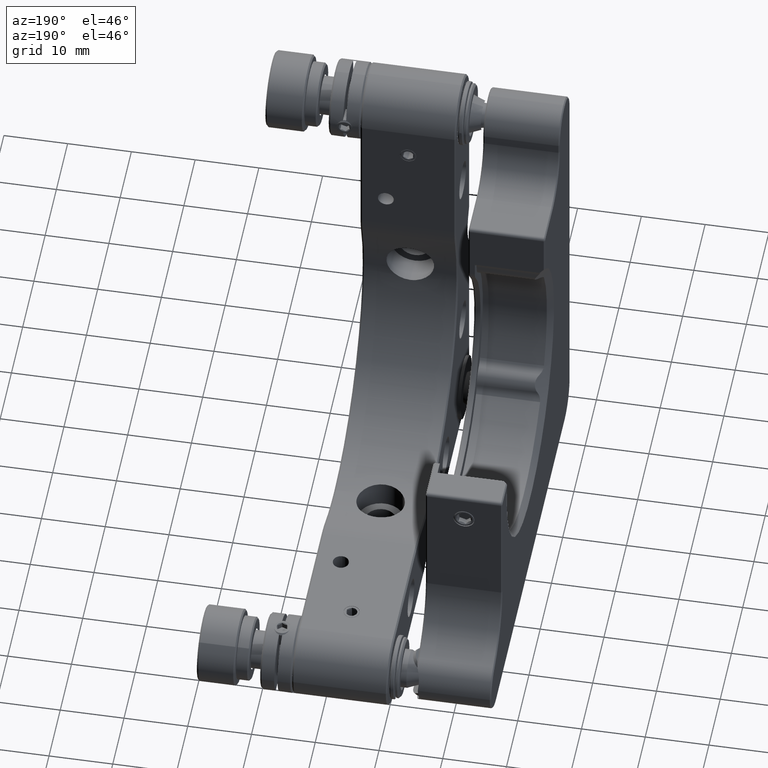
[diagram: clean part render]
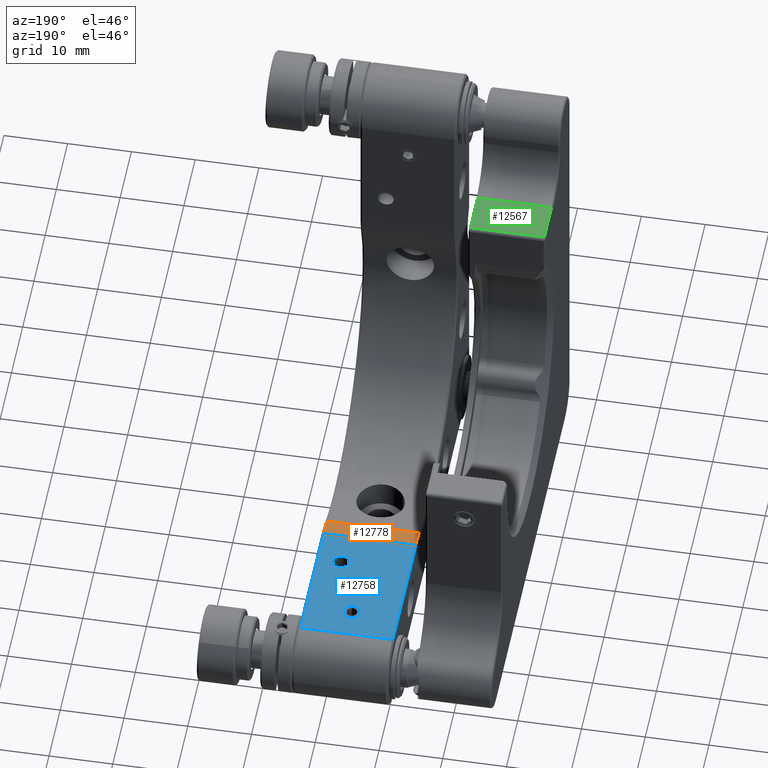
[diagram: same view with three faces highlighted in distinct colors, each labeled with its STEP entity id]
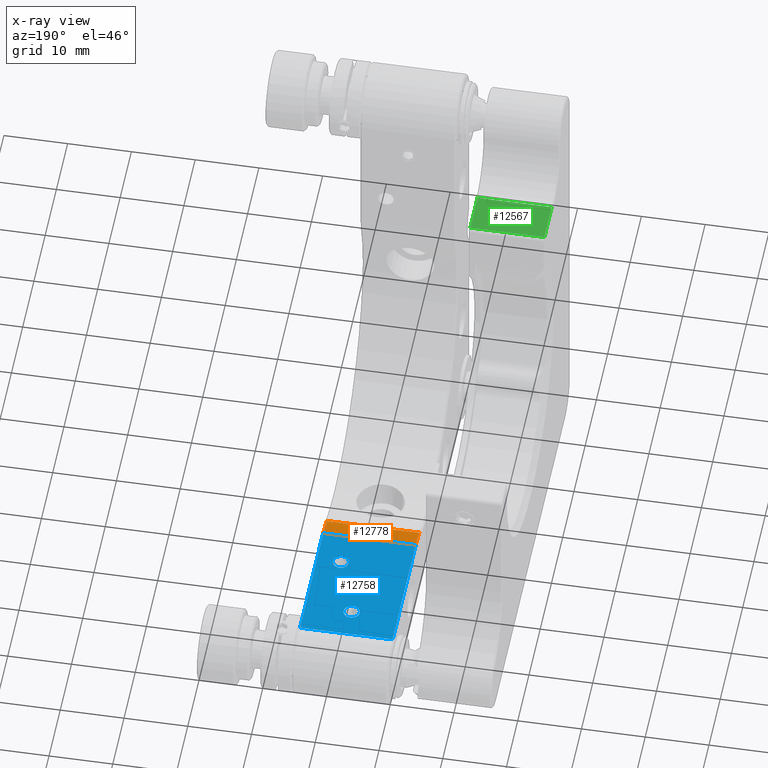
[diagram: x-ray of the same camera — body ghosted, the three highlighted faces saturated]
A machine part, auxiliary view with three faces highlighted in distinct colors.
The next image is the same camera in x-ray (body ghosted, the three faces saturated) — at least one of them is partly hidden behind the body in this view.
Their STEP definitions:

[orange] entity #12778 — the highlighted cylindrical surface (partial cylindrical patch) has radius 10 mm, axis along (1, -0, -0).
#79 = DIRECTION ( 'NONE',  ( 0.000000000000000000, 3.469446951953614189E-15, -1.000000000000000000 ) ) ;
#856 = CARTESIAN_POINT ( 'NONE',  ( -0.2256193229141847945, 5.407908999789167837, 26.95714285714285197 ) ) ;
#1222 = VERTEX_POINT ( 'NONE', #10768 ) ;
#1318 = DIRECTION ( 'NONE',  ( -1.000000000000000000, 0.000000000000000000, 0.000000000000000000 ) ) ;
#1416 = EDGE_CURVE ( 'NONE', #2560, #3560, #2873, .T. ) ;
#1592 = VERTEX_POINT ( 'NONE', #14742 ) ;
#2028 = CARTESIAN_POINT ( 'NONE',  ( -0.2256193229141847945, 8.657901150486123854, 17.49999999999999645 ) ) ;
#2560 = VERTEX_POINT ( 'NONE', #5594 ) ;
#2704 = ORIENTED_EDGE ( 'NONE', *, *, #15208, .F. ) ;
#2873 = CIRCLE ( 'NONE', #5119, 10.00000000000000000 ) ;
#3194 = CARTESIAN_POINT ( 'NONE',  ( -0.4756193229141988943, 8.657901150486123854, 27.49999999999999645 ) ) ;
#3560 = VERTEX_POINT ( 'NONE', #856 ) ;
#3733 = EDGE_CURVE ( 'NONE', #1222, #1592, #11863, .T. ) ;
#3903 = CYLINDRICAL_SURFACE ( 'NONE', #5881, 10.00000000000000000 ) ;
#3944 = ORIENTED_EDGE ( 'NONE', *, *, #1416, .T. ) ;
#3989 = EDGE_LOOP ( 'NONE', ( #5714, #3944, #2704, #10774 ) ) ;
#4279 = CARTESIAN_POINT ( 'NONE',  ( -0.4756193229141988943, 8.657901150486123854, 17.49999999999999645 ) ) ;
#4296 = DIRECTION ( 'NONE',  ( 1.000000000000000000, -0.000000000000000000, 0.000000000000000000 ) ) ;
#4878 = VECTOR ( 'NONE', #9731, 1000.000000000000000 ) ;
#4965 = CARTESIAN_POINT ( 'NONE',  ( -0.4756193229141988943, 5.407908999789167837, 26.95714285714285197 ) ) ;
#5119 = AXIS2_PLACEMENT_3D ( 'NONE', #2028, #8650, #13450 ) ;
#5594 = CARTESIAN_POINT ( 'NONE',  ( -0.2256193229141847945, 8.657901150486123854, 27.49999999999999645 ) ) ;
#5714 = ORIENTED_EDGE ( 'NONE', *, *, #8944, .F. ) ;
#5881 = AXIS2_PLACEMENT_3D ( 'NONE', #4279, #15095, #9050 ) ;
#8650 = DIRECTION ( 'NONE',  ( 1.000000000000000000, 0.000000000000000000, 0.000000000000000000 ) ) ;
#8944 = EDGE_CURVE ( 'NONE', #2560, #1592, #15193, .T. ) ;
#9050 = DIRECTION ( 'NONE',  ( 0.000000000000000000, 0.000000000000000000, -1.000000000000000000 ) ) ;
#9731 = DIRECTION ( 'NONE',  ( -1.000000000000000000, 0.000000000000000000, 0.000000000000000000 ) ) ;
#9851 = AXIS2_PLACEMENT_3D ( 'NONE', #11907, #1318, #79 ) ;
#10768 = CARTESIAN_POINT ( 'NONE',  ( 14.27438067708578728, 5.407908999789167837, 26.95714285714285197 ) ) ;
#10774 = ORIENTED_EDGE ( 'NONE', *, *, #3733, .T. ) ;
#10909 = LINE ( 'NONE', #4965, #4878 ) ;
#10964 = FACE_OUTER_BOUND ( 'NONE', #3989, .T. ) ;
#11863 = CIRCLE ( 'NONE', #9851, 10.00000000000000000 ) ;
#11907 = CARTESIAN_POINT ( 'NONE',  ( 14.27438067708578728, 8.657901150486123854, 17.49999999999999645 ) ) ;
#12329 = VECTOR ( 'NONE', #4296, 1000.000000000000000 ) ;
#12778 = ADVANCED_FACE ( 'NONE', ( #10964 ), #3903, .T. ) ;
#13450 = DIRECTION ( 'NONE',  ( 0.000000000000000000, 0.000000000000000000, -1.000000000000000000 ) ) ;
#14742 = CARTESIAN_POINT ( 'NONE',  ( 14.27438067708578728, 8.657901150486123854, 27.49999999999999645 ) ) ;
#15095 = DIRECTION ( 'NONE',  ( 1.000000000000000000, -0.000000000000000000, -0.000000000000000000 ) ) ;
#15193 = LINE ( 'NONE', #3194, #12329 ) ;
#15208 = EDGE_CURVE ( 'NONE', #1222, #3560, #10909, .T. ) ;

[blue] entity #12758 — the highlighted planar face has unit normal (0, 0, -1).
#124 = CIRCLE ( 'NONE', #6112, 1.249999999999988898 ) ;
#392 = ORIENTED_EDGE ( 'NONE', *, *, #1978, .T. ) ;
#459 = LINE ( 'NONE', #6238, #5673 ) ;
#618 = EDGE_LOOP ( 'NONE', ( #6467, #14971 ) ) ;
#629 = ORIENTED_EDGE ( 'NONE', *, *, #13741, .T. ) ;
#660 = CIRCLE ( 'NONE', #1898, 1.249999999999990674 ) ;
#725 = ORIENTED_EDGE ( 'NONE', *, *, #13911, .T. ) ;
#786 = CARTESIAN_POINT ( 'NONE',  ( -0.2256193229141847945, 29.18292862304677016, 27.50000000000000355 ) ) ;
#945 = DIRECTION ( 'NONE',  ( 0.000000000000000000, 2.448429006113450357E-16, -1.000000000000000000 ) ) ;
#1242 = FACE_BOUND ( 'NONE', #618, .T. ) ;
#1592 = VERTEX_POINT ( 'NONE', #14742 ) ;
#1748 = EDGE_CURVE ( 'NONE', #3465, #1828, #124, .T. ) ;
#1828 = VERTEX_POINT ( 'NONE', #13004 ) ;
#1834 = EDGE_CURVE ( 'NONE', #1592, #9936, #11738, .T. ) ;
#1898 = AXIS2_PLACEMENT_3D ( 'NONE', #2189, #945, #6968 ) ;
#1978 = EDGE_CURVE ( 'NONE', #13186, #5370, #7058, .T. ) ;
#2041 = AXIS2_PLACEMENT_3D ( 'NONE', #15423, #9689, #2398 ) ;
#2044 = CARTESIAN_POINT ( 'NONE',  ( -0.4756193229141988943, 29.18292862304677016, 27.50000000000000355 ) ) ;
#2189 = CARTESIAN_POINT ( 'NONE',  ( 10.52438067708579972, 14.18292862304676838, 27.49999999999999645 ) ) ;
#2258 = FACE_BOUND ( 'NONE', #7443, .T. ) ;
#2398 = DIRECTION ( 'NONE',  ( 0.000000000000000000, 1.000000000000000000, 0.000000000000000000 ) ) ;
#2560 = VERTEX_POINT ( 'NONE', #5594 ) ;
#2889 = CARTESIAN_POINT ( 'NONE',  ( 7.024380677085800606, 24.43292862304677371, 27.49999999999999289 ) ) ;
#3147 = LINE ( 'NONE', #2044, #3652 ) ;
#3194 = CARTESIAN_POINT ( 'NONE',  ( -0.4756193229141988943, 8.657901150486123854, 27.49999999999999645 ) ) ;
#3465 = VERTEX_POINT ( 'NONE', #13340 ) ;
#3652 = VECTOR ( 'NONE', #7852, 1000.000000000000000 ) ;
#3737 = DIRECTION ( 'NONE',  ( 0.000000000000000000, 2.448429006113450357E-16, -1.000000000000000000 ) ) ;
#4296 = DIRECTION ( 'NONE',  ( 1.000000000000000000, -0.000000000000000000, 0.000000000000000000 ) ) ;
#4465 = CARTESIAN_POINT ( 'NONE',  ( 7.024380677085800606, 24.43292862304677371, 27.49999999999999289 ) ) ;
#5237 = DIRECTION ( 'NONE',  ( 0.000000000000000000, -1.000000000000000000, -2.448429006113450357E-16 ) ) ;
#5370 = VERTEX_POINT ( 'NONE', #8490 ) ;
#5594 = CARTESIAN_POINT ( 'NONE',  ( -0.2256193229141847945, 8.657901150486123854, 27.49999999999999645 ) ) ;
#5673 = VECTOR ( 'NONE', #5237, 1000.000000000000000 ) ;
#5855 = EDGE_CURVE ( 'NONE', #1828, #3465, #8340, .T. ) ;
#6013 = PLANE ( 'NONE',  #6878 ) ;
#6112 = AXIS2_PLACEMENT_3D ( 'NONE', #2889, #6565, #7901 ) ;
#6238 = CARTESIAN_POINT ( 'NONE',  ( -0.2256193229141847945, 35.18292862304677016, 27.50000000000000355 ) ) ;
#6467 = ORIENTED_EDGE ( 'NONE', *, *, #5855, .F. ) ;
#6565 = DIRECTION ( 'NONE',  ( -0.000000000000000000, -0.000000000000000000, 1.000000000000000000 ) ) ;
#6878 = AXIS2_PLACEMENT_3D ( 'NONE', #7047, #3737, #11834 ) ;
#6968 = DIRECTION ( 'NONE',  ( 0.000000000000000000, 1.000000000000000000, 0.000000000000000000 ) ) ;
#7047 = CARTESIAN_POINT ( 'NONE',  ( -0.4756193229141988943, 35.18292862304677016, 27.50000000000000355 ) ) ;
#7058 = CIRCLE ( 'NONE', #2041, 1.249999999999990674 ) ;
#7443 = EDGE_LOOP ( 'NONE', ( #629, #392 ) ) ;
#7852 = DIRECTION ( 'NONE',  ( -1.000000000000000000, -0.000000000000000000, -0.000000000000000000 ) ) ;
#7901 = DIRECTION ( 'NONE',  ( 1.000000000000000000, 0.000000000000000000, 0.000000000000000000 ) ) ;
#7907 = DIRECTION ( 'NONE',  ( 1.000000000000000000, 0.000000000000000000, 0.000000000000000000 ) ) ;
#7984 = DIRECTION ( 'NONE',  ( -0.000000000000000000, -0.000000000000000000, 1.000000000000000000 ) ) ;
#8340 = CIRCLE ( 'NONE', #13367, 1.249999999999988898 ) ;
#8490 = CARTESIAN_POINT ( 'NONE',  ( 10.52438067708579972, 15.43292862304675772, 27.49999999999999645 ) ) ;
#8577 = ORIENTED_EDGE ( 'NONE', *, *, #1834, .T. ) ;
#8944 = EDGE_CURVE ( 'NONE', #2560, #1592, #15193, .T. ) ;
#9216 = EDGE_LOOP ( 'NONE', ( #14716, #725, #9444, #8577 ) ) ;
#9444 = ORIENTED_EDGE ( 'NONE', *, *, #8944, .T. ) ;
#9456 = CARTESIAN_POINT ( 'NONE',  ( 14.27438067708578728, 29.18292862304677016, 27.50000000000000355 ) ) ;
#9689 = DIRECTION ( 'NONE',  ( 0.000000000000000000, 2.448429006113450357E-16, -1.000000000000000000 ) ) ;
#9936 = VERTEX_POINT ( 'NONE', #12260 ) ;
#9997 = EDGE_CURVE ( 'NONE', #9936, #13692, #3147, .T. ) ;
#10715 = DIRECTION ( 'NONE',  ( 0.000000000000000000, 1.000000000000000000, 2.448429006113450357E-16 ) ) ;
#11738 = LINE ( 'NONE', #9456, #14147 ) ;
#11834 = DIRECTION ( 'NONE',  ( 0.000000000000000000, 1.000000000000000000, 2.448429006113450357E-16 ) ) ;
#12260 = CARTESIAN_POINT ( 'NONE',  ( 14.27438067708578728, 29.18292862304677016, 27.50000000000000355 ) ) ;
#12329 = VECTOR ( 'NONE', #4296, 1000.000000000000000 ) ;
#12758 = ADVANCED_FACE ( 'NONE', ( #2258, #1242, #14505 ), #6013, .F. ) ;
#13004 = CARTESIAN_POINT ( 'NONE',  ( 8.274380677085789060, 24.43292862304677371, 27.49999999999999289 ) ) ;
#13186 = VERTEX_POINT ( 'NONE', #13291 ) ;
#13291 = CARTESIAN_POINT ( 'NONE',  ( 10.52438067708579972, 12.93292862304677726, 27.49999999999999645 ) ) ;
#13340 = CARTESIAN_POINT ( 'NONE',  ( 5.774380677085812152, 24.43292862304677371, 27.49999999999999289 ) ) ;
#13367 = AXIS2_PLACEMENT_3D ( 'NONE', #4465, #7984, #7907 ) ;
#13692 = VERTEX_POINT ( 'NONE', #786 ) ;
#13741 = EDGE_CURVE ( 'NONE', #5370, #13186, #660, .T. ) ;
#13911 = EDGE_CURVE ( 'NONE', #13692, #2560, #459, .T. ) ;
#14147 = VECTOR ( 'NONE', #10715, 1000.000000000000000 ) ;
#14505 = FACE_OUTER_BOUND ( 'NONE', #9216, .T. ) ;
#14716 = ORIENTED_EDGE ( 'NONE', *, *, #9997, .T. ) ;
#14742 = CARTESIAN_POINT ( 'NONE',  ( 14.27438067708578728, 8.657901150486123854, 27.49999999999999645 ) ) ;
#14971 = ORIENTED_EDGE ( 'NONE', *, *, #1748, .F. ) ;
#15193 = LINE ( 'NONE', #3194, #12329 ) ;
#15423 = CARTESIAN_POINT ( 'NONE',  ( 10.52438067708579972, 14.18292862304676838, 27.49999999999999645 ) ) ;

[green] entity #12567 — the highlighted planar face has unit normal (0, -0, -1).
#21 = LINE ( 'NONE', #14293, #2390 ) ;
#697 = CARTESIAN_POINT ( 'NONE',  ( -4.670900697152780445, -21.31707137695322984, 75.00000000000000000 ) ) ;
#1404 = CARTESIAN_POINT ( 'NONE',  ( -16.27090069715276499, -21.31707137695322984, 75.00000000000000000 ) ) ;
#1596 = VERTEX_POINT ( 'NONE', #1404 ) ;
#1915 = VECTOR ( 'NONE', #7848, 1000.000000000000000 ) ;
#2390 = VECTOR ( 'NONE', #3529, 1000.000000000000000 ) ;
#2908 = ORIENTED_EDGE ( 'NONE', *, *, #12388, .T. ) ;
#3529 = DIRECTION ( 'NONE',  ( 0.000000000000000000, 1.000000000000000000, -1.982541115402065702E-15 ) ) ;
#4220 = LINE ( 'NONE', #6419, #11053 ) ;
#4389 = PLANE ( 'NONE',  #12665 ) ;
#5404 = EDGE_CURVE ( 'NONE', #7095, #1596, #5977, .T. ) ;
#5719 = FACE_OUTER_BOUND ( 'NONE', #9572, .T. ) ;
#5842 = CARTESIAN_POINT ( 'NONE',  ( -16.27090069715276499, -14.81707137695322984, 74.99999999999998579 ) ) ;
#5977 = LINE ( 'NONE', #8191, #12346 ) ;
#6419 = CARTESIAN_POINT ( 'NONE',  ( -4.470900697152771386, -21.31707137695322984, 75.00000000000000000 ) ) ;
#7095 = VERTEX_POINT ( 'NONE', #5842 ) ;
#7526 = ORIENTED_EDGE ( 'NONE', *, *, #5404, .T. ) ;
#7848 = DIRECTION ( 'NONE',  ( -1.000000000000000000, 0.000000000000000000, 0.000000000000000000 ) ) ;
#8056 = EDGE_CURVE ( 'NONE', #10688, #1596, #4220, .T. ) ;
#8191 = CARTESIAN_POINT ( 'NONE',  ( -16.27090069715276499, -21.31707137695322984, 75.00000000000000000 ) ) ;
#9572 = EDGE_LOOP ( 'NONE', ( #13393, #2908, #12821, #7526 ) ) ;
#10187 = CARTESIAN_POINT ( 'NONE',  ( -4.470900697152771386, -14.31707137695322984, 74.99999999999998579 ) ) ;
#10275 = LINE ( 'NONE', #10431, #1915 ) ;
#10431 = CARTESIAN_POINT ( 'NONE',  ( -4.470900697152771386, -14.81707137695322984, 74.99999999999998579 ) ) ;
#10688 = VERTEX_POINT ( 'NONE', #697 ) ;
#11053 = VECTOR ( 'NONE', #13657, 1000.000000000000000 ) ;
#12246 = CARTESIAN_POINT ( 'NONE',  ( -4.670900697152780445, -14.81707137695322984, 74.99999999999998579 ) ) ;
#12346 = VECTOR ( 'NONE', #12979, 1000.000000000000000 ) ;
#12388 = EDGE_CURVE ( 'NONE', #10688, #13502, #21, .T. ) ;
#12567 = ADVANCED_FACE ( 'NONE', ( #5719 ), #4389, .F. ) ;
#12629 = DIRECTION ( 'NONE',  ( 0.000000000000000000, -1.982541115402065702E-15, -1.000000000000000000 ) ) ;
#12665 = AXIS2_PLACEMENT_3D ( 'NONE', #10187, #12629, #15125 ) ;
#12821 = ORIENTED_EDGE ( 'NONE', *, *, #15447, .T. ) ;
#12979 = DIRECTION ( 'NONE',  ( 0.000000000000000000, -1.000000000000000000, 1.982541115402065702E-15 ) ) ;
#13393 = ORIENTED_EDGE ( 'NONE', *, *, #8056, .F. ) ;
#13502 = VERTEX_POINT ( 'NONE', #12246 ) ;
#13657 = DIRECTION ( 'NONE',  ( -1.000000000000000000, -0.000000000000000000, -0.000000000000000000 ) ) ;
#14293 = CARTESIAN_POINT ( 'NONE',  ( -4.670900697152780445, -14.31707137695322984, 74.99999999999998579 ) ) ;
#15125 = DIRECTION ( 'NONE',  ( 0.000000000000000000, 1.000000000000000000, -1.982541115402065702E-15 ) ) ;
#15447 = EDGE_CURVE ( 'NONE', #13502, #7095, #10275, .T. ) ;